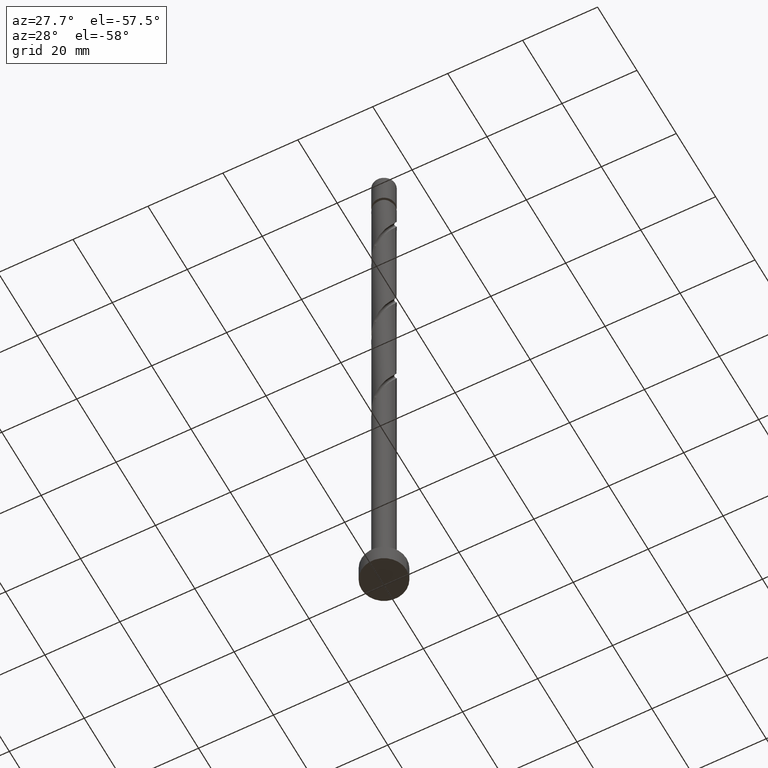
[diagram: clean part render]
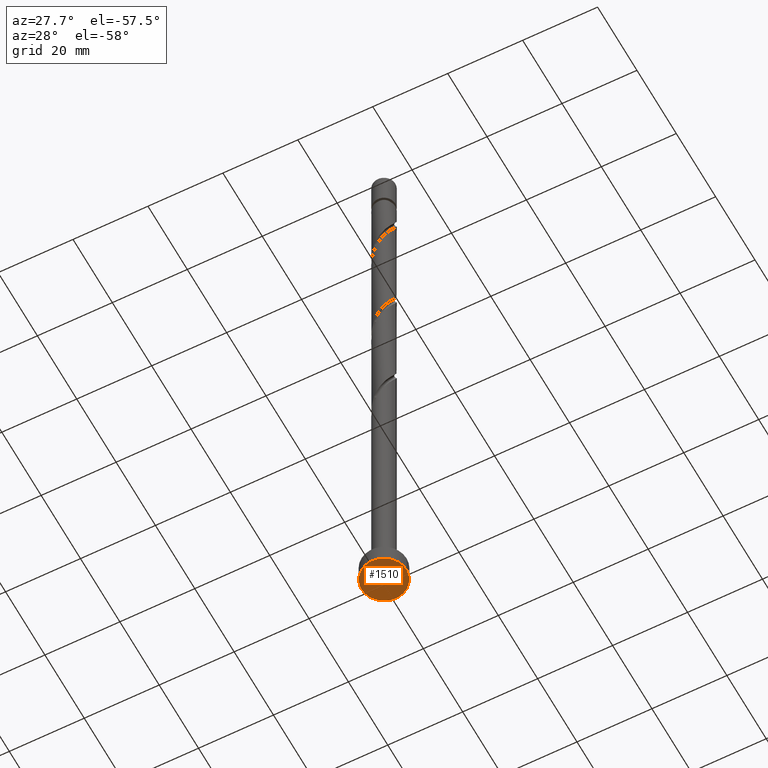
[diagram: same view with one face highlighted and labeled with its STEP entity id]
A machine part, auxiliary view. The second image highlights one B-rep face of the part: STEP entity #1510.
In plain terms, the highlighted planar face has unit normal (0, 0, 1).
Its self-contained STEP definition (entity closure, byte-faithful):
#126 = DIRECTION ( 'NONE',  ( 0.000000000000000000, 0.000000000000000000, 1.000000000000000000 ) ) ;
#141 = ORIENTED_EDGE ( 'NONE', *, *, #693, .F. ) ;
#207 = FACE_OUTER_BOUND ( 'NONE', #1489, .T. ) ;
#233 = AXIS2_PLACEMENT_3D ( 'NONE', #1728, #126, #814 ) ;
#243 = VERTEX_POINT ( 'NONE', #1660 ) ;
#360 = ORIENTED_EDGE ( 'NONE', *, *, #1011, .F. ) ;
#519 = DIRECTION ( 'NONE',  ( 1.000000000000000000, 0.000000000000000000, -0.000000000000000000 ) ) ;
#540 = DIRECTION ( 'NONE',  ( 0.000000000000000000, 0.000000000000000000, 1.000000000000000000 ) ) ;
#629 = CIRCLE ( 'NONE', #879, 6.000000000000000888 ) ;
#693 = EDGE_CURVE ( 'NONE', #243, #989, #629, .T. ) ;
#810 = CARTESIAN_POINT ( 'NONE',  ( 0.000000000000000000, 0.000000000000000000, 0.000000000000000000 ) ) ;
#814 = DIRECTION ( 'NONE',  ( 1.000000000000000000, 0.000000000000000000, 0.000000000000000000 ) ) ;
#879 = AXIS2_PLACEMENT_3D ( 'NONE', #810, #540, #1082 ) ;
#989 = VERTEX_POINT ( 'NONE', #1580 ) ;
#1011 = EDGE_CURVE ( 'NONE', #989, #243, #1363, .T. ) ;
#1082 = DIRECTION ( 'NONE',  ( 1.000000000000000000, 0.000000000000000000, 0.000000000000000000 ) ) ;
#1290 = PLANE ( 'NONE',  #1422 ) ;
#1363 = CIRCLE ( 'NONE', #233, 6.000000000000000888 ) ;
#1422 = AXIS2_PLACEMENT_3D ( 'NONE', #1436, #1707, #519 ) ;
#1436 = CARTESIAN_POINT ( 'NONE',  ( 0.000000000000000000, 0.000000000000000000, 0.000000000000000000 ) ) ;
#1489 = EDGE_LOOP ( 'NONE', ( #141, #360 ) ) ;
#1510 = ADVANCED_FACE ( 'NONE', ( #207 ), #1290, .F. ) ;
#1580 = CARTESIAN_POINT ( 'NONE',  ( 6.000000000000000888, 7.347880794884120722E-16, 0.000000000000000000 ) ) ;
#1660 = CARTESIAN_POINT ( 'NONE',  ( -6.000000000000000888, 0.000000000000000000, 0.000000000000000000 ) ) ;
#1707 = DIRECTION ( 'NONE',  ( 0.000000000000000000, 0.000000000000000000, 1.000000000000000000 ) ) ;
#1728 = CARTESIAN_POINT ( 'NONE',  ( 0.000000000000000000, 0.000000000000000000, 0.000000000000000000 ) ) ;